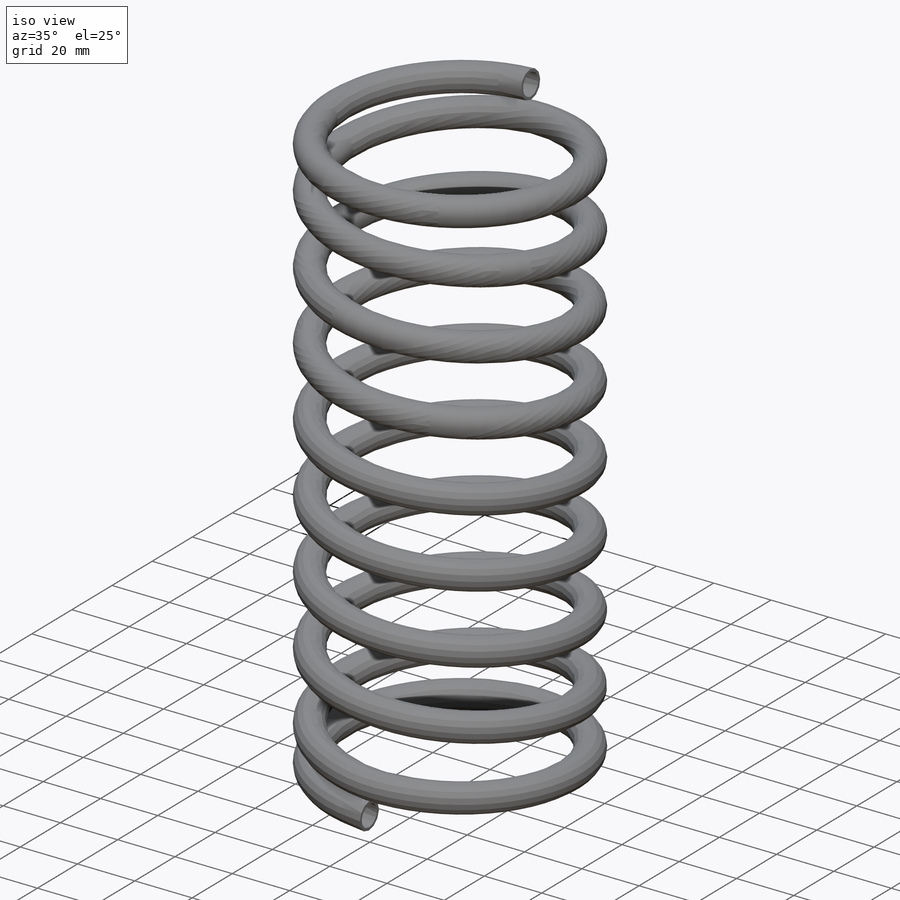
[diagram: iso view]
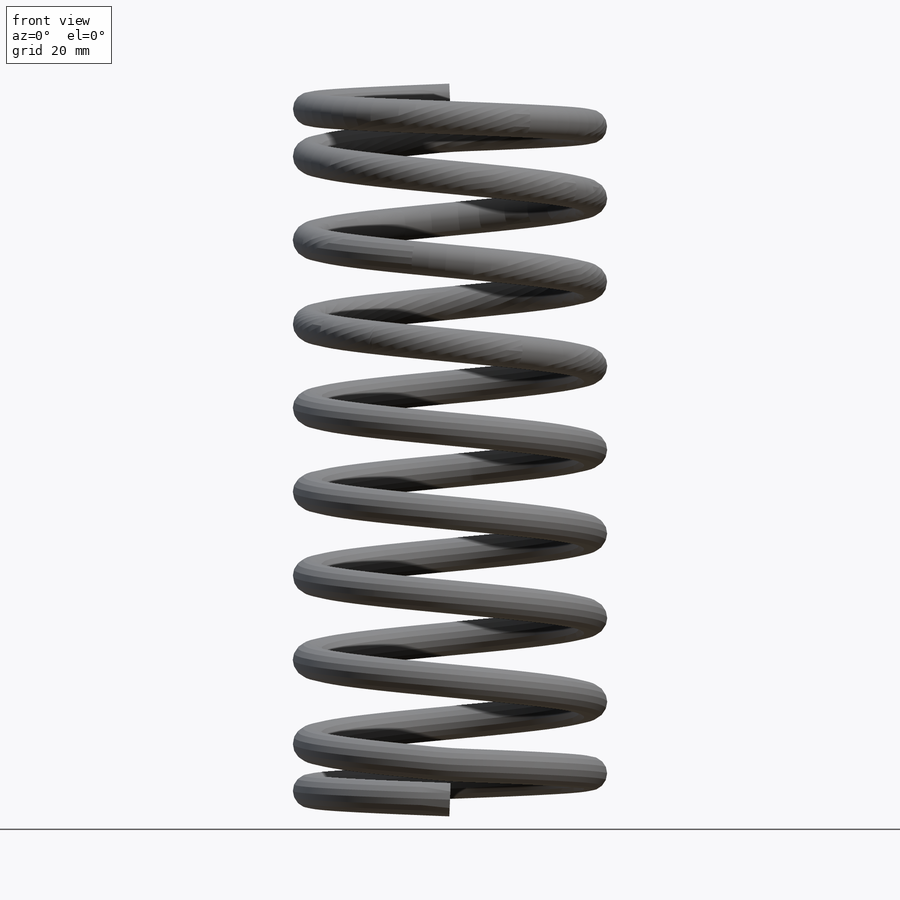
[diagram: front view]
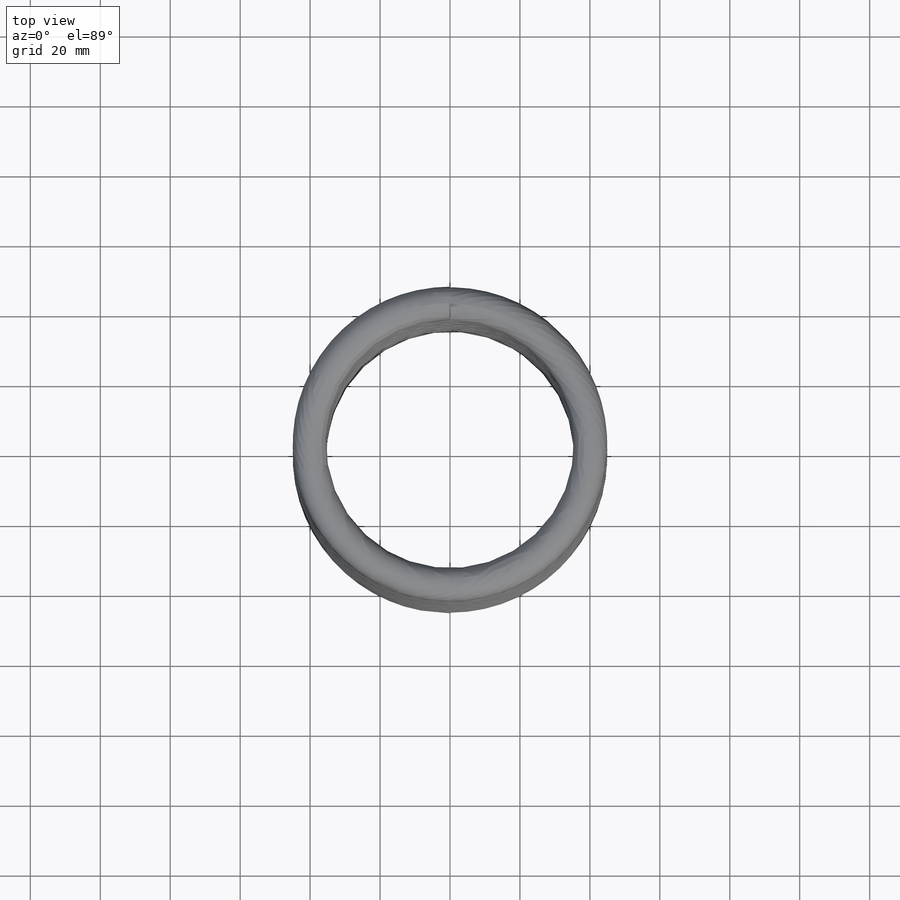
[diagram: top view]
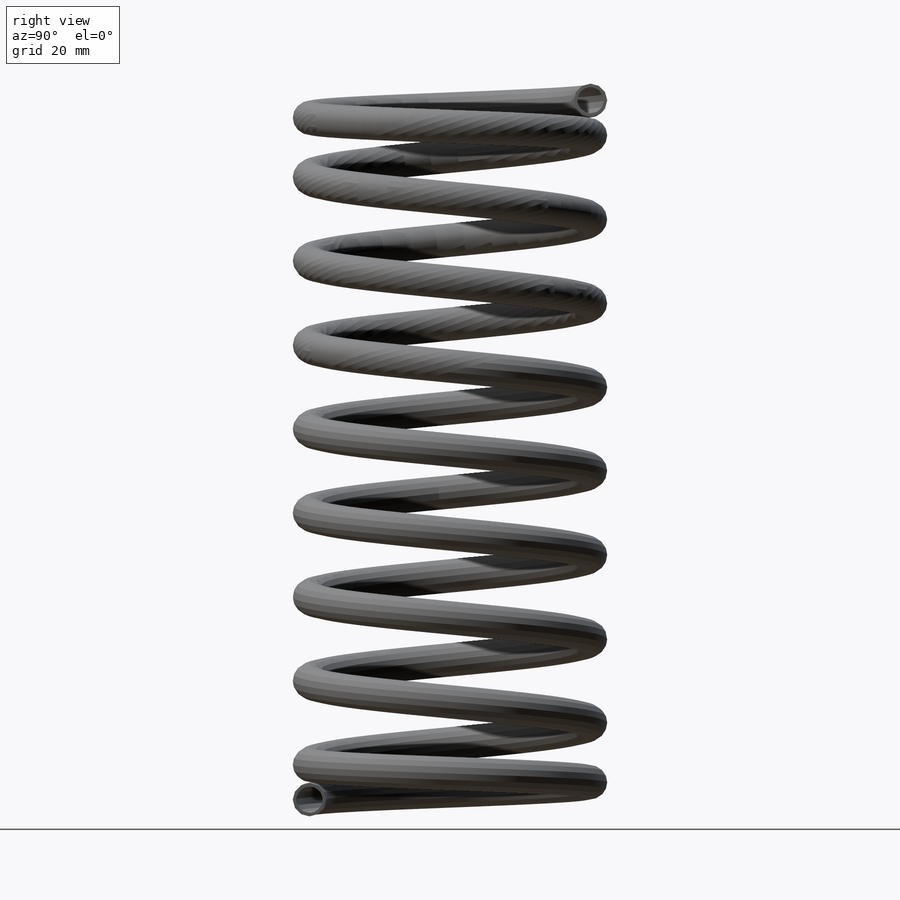
[diagram: right view]
SOLIDWORKS PART (.sldprt)
format: sldprt  version: not decoded by parser v0  size: 900,096 bytes
history: native  units: mm
features: plane x5, sketch x5, material x1, helix x1, sweep x1 (+9 scaffold rows collapsed)
feature tree (22):
  scaffold x9  (default folders/planes/origin — collapsed)
  material  "Material <nicht festgelegt>"
  plane  "Vorne"
  plane  "Oben"
  plane  "Rechts"
  sketch  "Skizze1"  dims[D1=80.4mm]
  helix  "Spirale/Helix1"  Pitch=180mm
  sketch  "Skizze2"  dims[D1=80.4mm Spirale/Helix2=0.0 D3=10.0mm D4=10.0mm D5=1000.0mm D7=0.0deg]
  plane  "Ebene1"
  sketch  "Skizze4"  dims[D1=80.4mm Spirale/Helix3=0.0 D3=10.0mm D4=10.0mm D5=1000.0mm D7=180.0deg]
  plane  "Ebene2"
  sketch  "Skizze5"  dims[c1.D1=9.525mm c1.D2=~4.60415mm c2.D1=~16.008902mm c2.D2=0.889mm]
  sketch  "3D-Skizze1"
  sweep  "Austragung-Dünn1"
decode coverage: 5 of 7 modeling features carry decoded parameters
note: ~ marks probable driven/reference dimensions
note: suppression state not decoded; provenance and decode notes live in map.json
